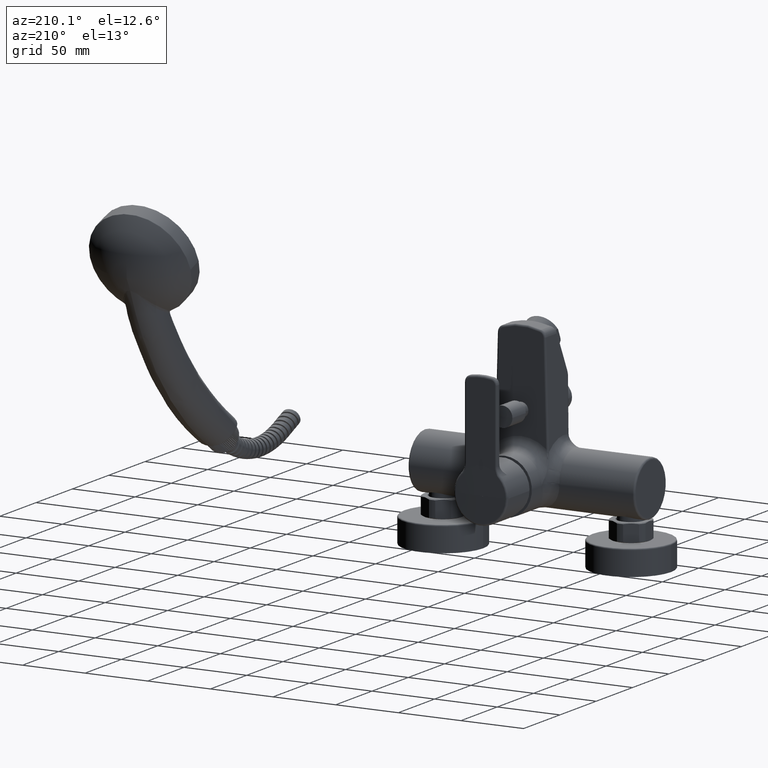
[diagram: clean part render]
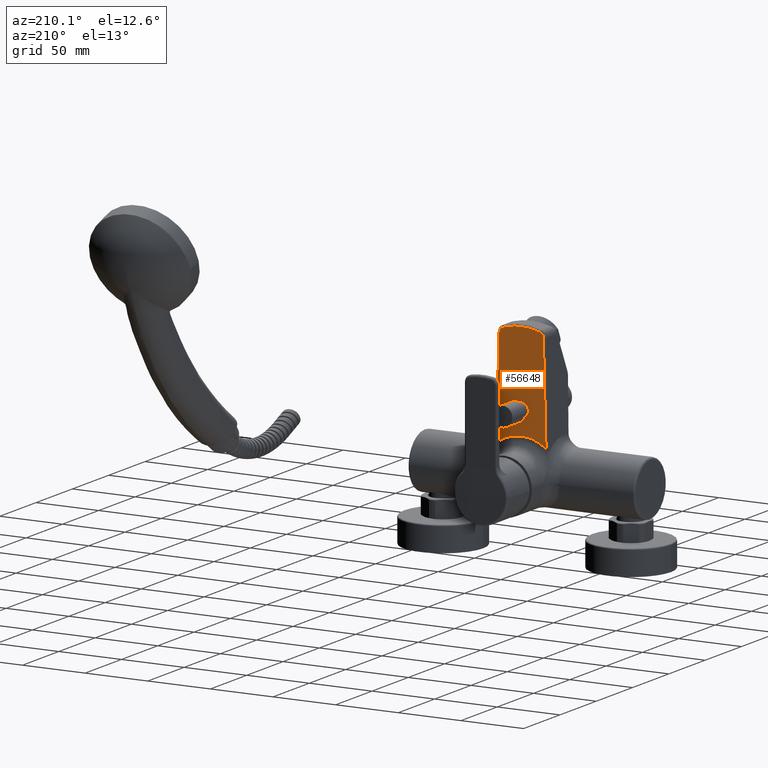
[diagram: same view with one face highlighted and labeled with its STEP entity id]
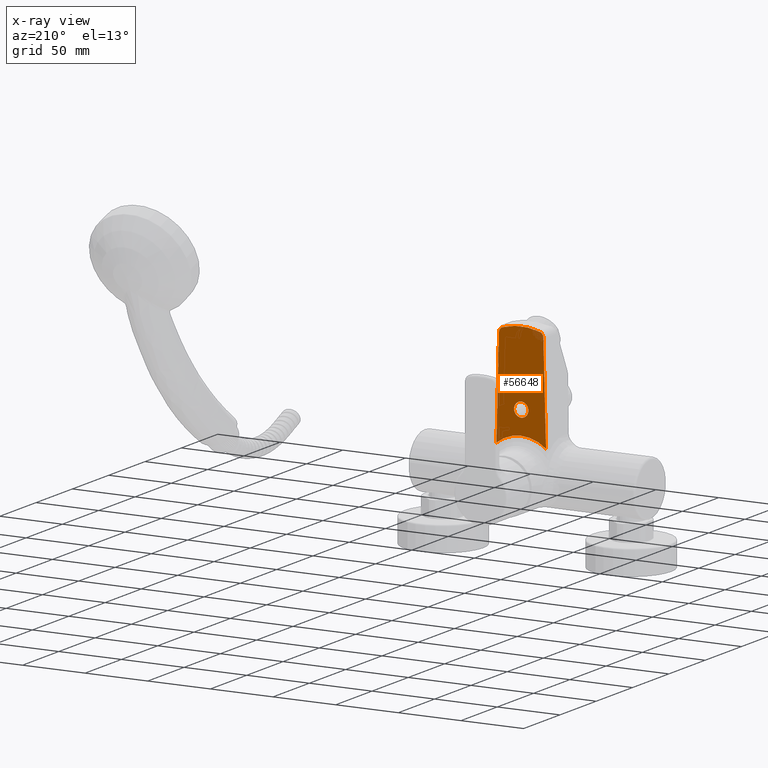
[diagram: x-ray of the same camera — body ghosted, the highlighted face saturated]
A machine part, auxiliary view. The second image highlights one B-rep face of the part: STEP entity #56648.
The next image is the same camera in x-ray: the body ghosted, the highlighted face saturated — about 3% of this face is hidden behind the body in this view.
In plain terms, the highlighted planar face has unit normal (0, 1, 0).
Its self-contained STEP definition (entity closure, byte-faithful):
#5111=CARTESIAN_POINT('',(1.983183543791E1,2.200000000529E1,2.447341944912E1));
#5118=CARTESIAN_POINT('',(0.E0,2.2E1,0.E0));
#5119=DIRECTION('',(0.E0,-1.E0,0.E0));
#5120=DIRECTION('',(6.295821044310E-1,0.E0,7.769339571548E-1));
#5121=AXIS2_PLACEMENT_3D('',#5118,#5119,#5120);
#5404=DIRECTION('',(2.725866665986E-2,6.734797813265E-11,-9.996284135077E-1));
#5405=VECTOR('',#5404,7.853099208013E1);
#5406=CARTESIAN_POINT('',(1.769118530233E1,2.2E1,1.029752304734E2));
#5407=LINE('',#5406,#5405);
#5408=CARTESIAN_POINT('',(1.369267164824E1,2.2E1,1.028661958090E2));
#5409=DIRECTION('',(0.E0,1.E0,0.E0));
#5410=DIRECTION('',(3.042815921831E-1,0.E0,9.525821290884E-1));
#5411=AXIS2_PLACEMENT_3D('',#5408,#5409,#5410);
#5413=CARTESIAN_POINT('',(0.E0,2.2E1,6.E1));
#5414=DIRECTION('',(0.E0,1.E0,0.E0));
#5415=DIRECTION('',(-3.042815921831E-1,0.E0,9.525821290884E-1));
#5416=AXIS2_PLACEMENT_3D('',#5413,#5414,#5415);
#5418=CARTESIAN_POINT('',(-1.369267164824E1,2.2E1,1.028661958090E2));
#5419=DIRECTION('',(0.E0,1.E0,0.E0));
#5420=DIRECTION('',(-9.996284135231E-1,0.E0,2.725866609700E-2));
#5421=AXIS2_PLACEMENT_3D('',#5418,#5419,#5420);
#5423=DIRECTION('',(2.725866525724E-2,1.311361435641E-11,9.996284135460E-1));
#5424=VECTOR('',#5423,7.853098970922E1);
#5425=CARTESIAN_POINT('',(-1.983183526313E1,2.199999999897E1,2.447342181614E1));
#5426=LINE('',#5425,#5424);
#5427=CARTESIAN_POINT('',(0.E0,2.2E1,5.E1));
#5428=DIRECTION('',(0.E0,1.E0,0.E0));
#5429=DIRECTION('',(1.E0,0.E0,0.E0));
#5430=AXIS2_PLACEMENT_3D('',#5427,#5428,#5429);
#5432=CARTESIAN_POINT('',(0.E0,2.2E1,5.E1));
#5433=DIRECTION('',(0.E0,1.E0,0.E0));
#5434=DIRECTION('',(-1.E0,0.E0,0.E0));
#5435=AXIS2_PLACEMENT_3D('',#5432,#5433,#5434);
#42355=VERTEX_POINT('',#5111);
#42357=CARTESIAN_POINT('',(1.769118530233E1,2.2E1,1.029752304734E2));
#42358=VERTEX_POINT('',#42357);
#42361=CARTESIAN_POINT('',(1.490979801697E1,2.2E1,1.066765243253E2));
#42362=VERTEX_POINT('',#42361);
#42365=CARTESIAN_POINT('',(-1.490979801697E1,2.2E1,1.066765243253E2));
#42366=VERTEX_POINT('',#42365);
#42369=CARTESIAN_POINT('',(-1.769118530233E1,2.2E1,1.029752304734E2));
#42370=VERTEX_POINT('',#42369);
#42373=CARTESIAN_POINT('',(-1.983183526313E1,2.199999999897E1,
2.447342181614E1));
#42374=VERTEX_POINT('',#42373);
#42864=CARTESIAN_POINT('',(5.7E0,2.2E1,5.E1));
#42865=CARTESIAN_POINT('',(-5.7E0,2.2E1,5.E1));
#42866=VERTEX_POINT('',#42864);
#42867=VERTEX_POINT('',#42865);
#56625=CARTESIAN_POINT('',(1.85E1,2.2E1,1.1E2));
#56626=DIRECTION('',(0.E0,1.E0,0.E0));
#56627=DIRECTION('',(-1.E0,0.E0,0.E0));
#56628=AXIS2_PLACEMENT_3D('',#56625,#56626,#56627);
#56629=PLANE('',#56628);
#56631=ORIENTED_EDGE('',*,*,#56630,.F.);
#56633=ORIENTED_EDGE('',*,*,#56632,.F.);
#56635=ORIENTED_EDGE('',*,*,#56634,.F.);
#56637=ORIENTED_EDGE('',*,*,#56636,.F.);
#56638=ORIENTED_EDGE('',*,*,#56604,.F.);
#56639=ORIENTED_EDGE('',*,*,#56021,.F.);
#56640=EDGE_LOOP('',(#56631,#56633,#56635,#56637,#56638,#56639));
#56641=FACE_OUTER_BOUND('',#56640,.F.);
#56643=ORIENTED_EDGE('',*,*,#56642,.T.);
#56645=ORIENTED_EDGE('',*,*,#56644,.T.);
#56646=EDGE_LOOP('',(#56643,#56645));
#56647=FACE_BOUND('',#56646,.F.);
#56648=ADVANCED_FACE('',(#56641,#56647),#56629,.T.);
#5122=CIRCLE('',#5121,3.15E1);
#5412=CIRCLE('',#5411,4.E0);
#5417=CIRCLE('',#5416,4.9E1);
#5422=CIRCLE('',#5421,4.E0);
#5431=CIRCLE('',#5430,5.7E0);
#5436=CIRCLE('',#5435,5.7E0);
#56021=EDGE_CURVE('',#42355,#42374,#5122,.T.);
#56604=EDGE_CURVE('',#42374,#42370,#5426,.T.);
#56630=EDGE_CURVE('',#42358,#42355,#5407,.T.);
#56632=EDGE_CURVE('',#42362,#42358,#5412,.T.);
#56634=EDGE_CURVE('',#42366,#42362,#5417,.T.);
#56636=EDGE_CURVE('',#42370,#42366,#5422,.T.);
#56642=EDGE_CURVE('',#42866,#42867,#5431,.T.);
#56644=EDGE_CURVE('',#42867,#42866,#5436,.T.);